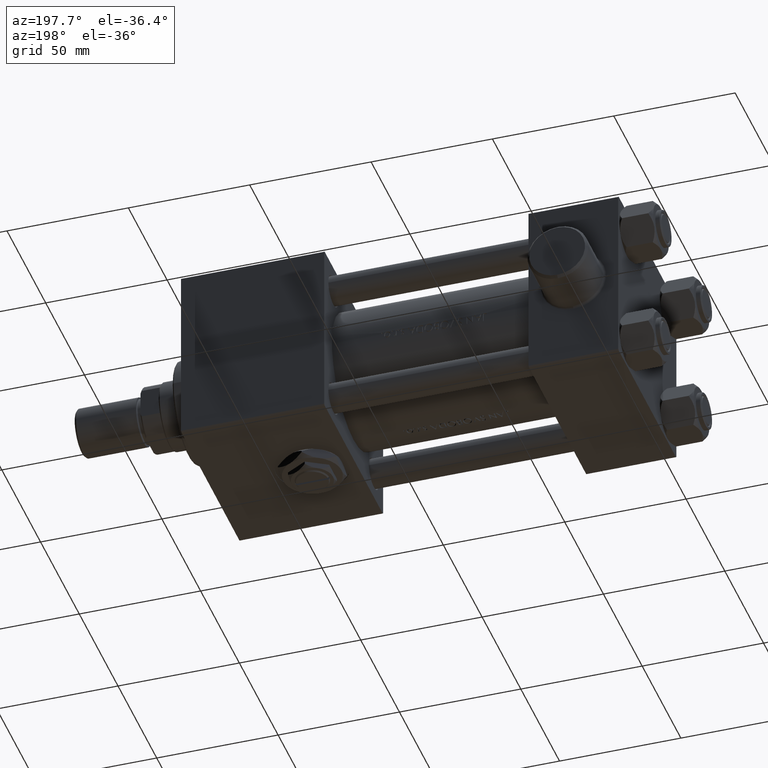
[diagram: clean part render]
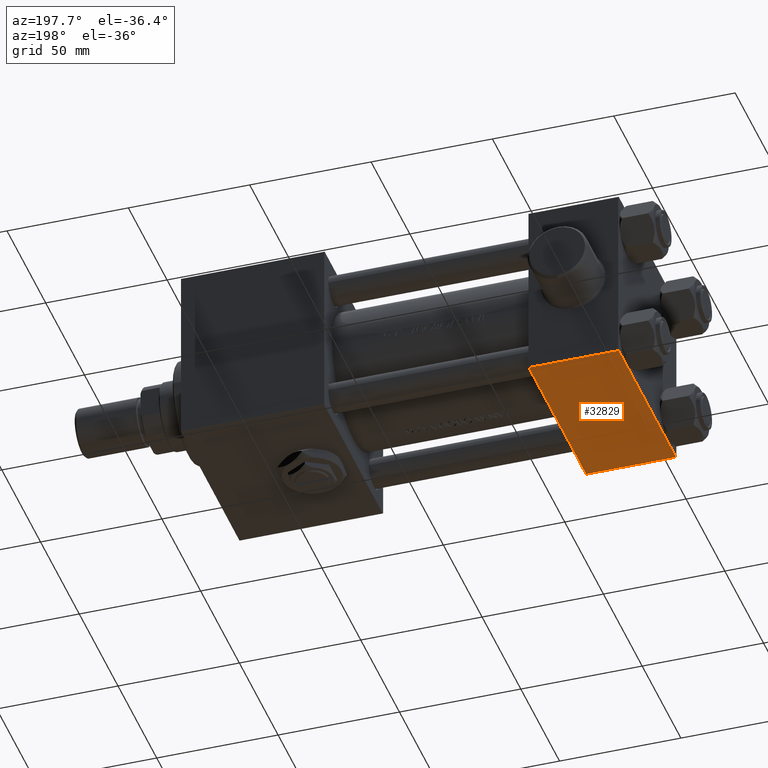
[diagram: same view with one face highlighted and labeled with its STEP entity id]
A machine part, auxiliary view. The second image highlights one B-rep face of the part: STEP entity #32829.
In plain terms, the highlighted planar face has unit normal (0, 0, -1).
Its self-contained STEP definition (entity closure, byte-faithful):
#709 = AXIS2_PLACEMENT_3D ( 'NONE', #47761, #40113, #21267 ) ;
#879 = CARTESIAN_POINT ( 'NONE',  ( 0.000000000000000000, -37.00000000000002132, -37.50000000000000711 ) ) ;
#1091 = EDGE_CURVE ( 'NONE', #22567, #36792, #42594, .T. ) ;
#1316 = EDGE_CURVE ( 'NONE', #33434, #4267, #27638, .T. ) ;
#2009 = CARTESIAN_POINT ( 'NONE',  ( 37.00000000000000000, -37.00000000000002132, -37.50000000000000711 ) ) ;
#4267 = VERTEX_POINT ( 'NONE', #42220 ) ;
#5063 = VECTOR ( 'NONE', #30721, 1000.000000000000000 ) ;
#7020 = DIRECTION ( 'NONE',  ( 0.000000000000000000, -1.000000000000000000, -9.251858538542972814E-17 ) ) ;
#8453 = ORIENTED_EDGE ( 'NONE', *, *, #1316, .T. ) ;
#8647 = CARTESIAN_POINT ( 'NONE',  ( 37.00000000000000000, 36.99999999999997868, -37.50000000000000000 ) ) ;
#9834 = VECTOR ( 'NONE', #12270, 1000.000000000000000 ) ;
#12024 = ORIENTED_EDGE ( 'NONE', *, *, #21427, .T. ) ;
#12270 = DIRECTION ( 'NONE',  ( -1.000000000000000000, 0.000000000000000000, 0.000000000000000000 ) ) ;
#14632 = CARTESIAN_POINT ( 'NONE',  ( 0.000000000000000000, 36.99999999999997868, -37.50000000000000000 ) ) ;
#18553 = VECTOR ( 'NONE', #7020, 1000.000000000000000 ) ;
#21267 = DIRECTION ( 'NONE',  ( 0.000000000000000000, 1.000000000000000000, 9.251858538542972814E-17 ) ) ;
#21427 = EDGE_CURVE ( 'NONE', #36792, #33434, #22621, .T. ) ;
#22205 = LINE ( 'NONE', #26173, #23180 ) ;
#22567 = VERTEX_POINT ( 'NONE', #14632 ) ;
#22621 = LINE ( 'NONE', #29061, #18553 ) ;
#23180 = VECTOR ( 'NONE', #45243, 1000.000000000000000 ) ;
#24987 = PLANE ( 'NONE',  #709 ) ;
#26173 = CARTESIAN_POINT ( 'NONE',  ( 0.000000000000000000, 37.49999999999999289, -37.50000000000000000 ) ) ;
#26576 = ORIENTED_EDGE ( 'NONE', *, *, #40965, .F. ) ;
#27638 = LINE ( 'NONE', #879, #9834 ) ;
#29061 = CARTESIAN_POINT ( 'NONE',  ( 37.00000000000000000, 37.49999999999999289, -37.50000000000000000 ) ) ;
#30721 = DIRECTION ( 'NONE',  ( 1.000000000000000000, 0.000000000000000000, 0.000000000000000000 ) ) ;
#32829 = ADVANCED_FACE ( 'NONE', ( #36147 ), #24987, .T. ) ;
#33434 = VERTEX_POINT ( 'NONE', #2009 ) ;
#36147 = FACE_OUTER_BOUND ( 'NONE', #39211, .T. ) ;
#36792 = VERTEX_POINT ( 'NONE', #45490 ) ;
#37777 = ORIENTED_EDGE ( 'NONE', *, *, #1091, .T. ) ;
#39211 = EDGE_LOOP ( 'NONE', ( #26576, #37777, #12024, #8453 ) ) ;
#40113 = DIRECTION ( 'NONE',  ( 0.000000000000000000, 9.251858538542972814E-17, -1.000000000000000000 ) ) ;
#40965 = EDGE_CURVE ( 'NONE', #22567, #4267, #22205, .T. ) ;
#42220 = CARTESIAN_POINT ( 'NONE',  ( 0.000000000000000000, -37.00000000000002132, -37.50000000000000711 ) ) ;
#42594 = LINE ( 'NONE', #8647, #5063 ) ;
#45243 = DIRECTION ( 'NONE',  ( 0.000000000000000000, -1.000000000000000000, -9.251858538542972814E-17 ) ) ;
#45490 = CARTESIAN_POINT ( 'NONE',  ( 37.00000000000000000, 36.99999999999997868, -37.50000000000000000 ) ) ;
#47761 = CARTESIAN_POINT ( 'NONE',  ( 37.00000000000000000, 37.49999999999999289, -37.50000000000000000 ) ) ;